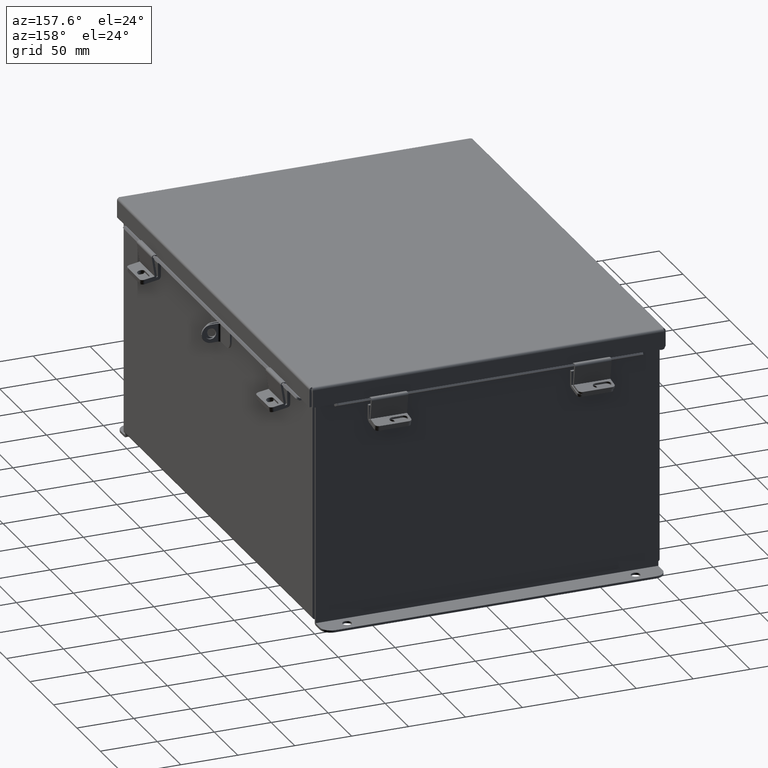
[diagram: clean part render]
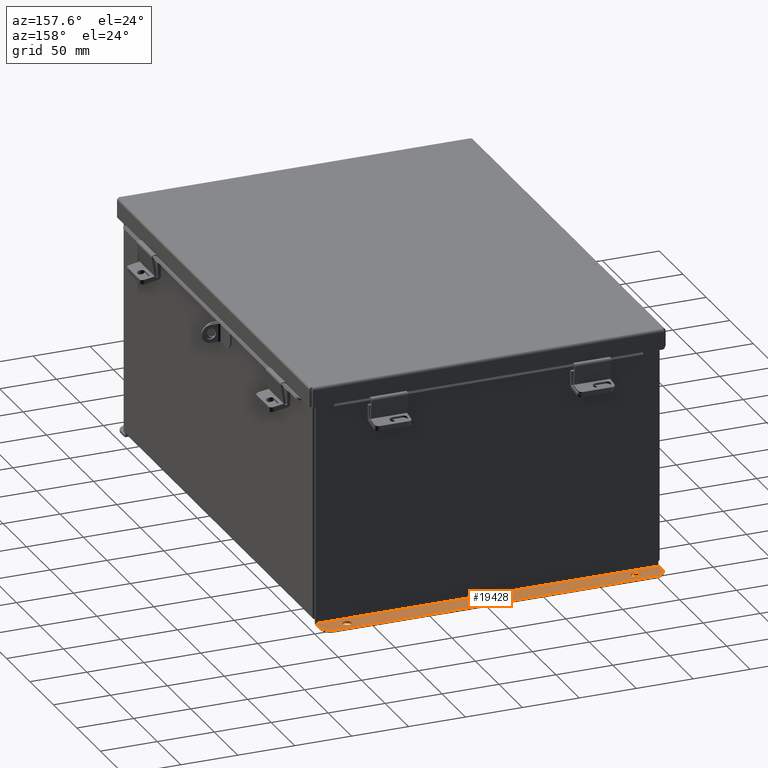
[diagram: same view with one face highlighted and labeled with its STEP entity id]
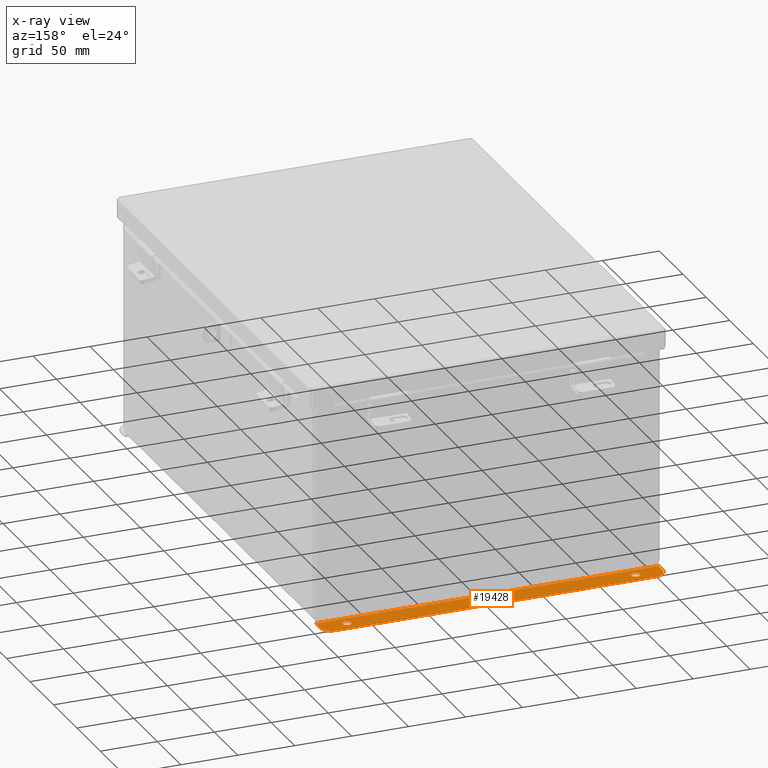
[diagram: x-ray of the same camera — body ghosted, the highlighted face saturated]
A machine part, auxiliary view. The second image highlights one B-rep face of the part: STEP entity #19428.
The next image is the same camera in x-ray: the body ghosted, the highlighted face saturated — about 0% of this face is hidden behind the body in this view.
In plain terms, the highlighted planar face has unit normal (0, 0, 1).
Its self-contained STEP definition (entity closure, byte-faithful):
#26 = CARTESIAN_POINT ( 'NONE',  ( 0.0000000000000000000, -1.420560956705417000E-014, -4.112300000000001200 ) ) ;
#356 = VERTEX_POINT ( 'NONE', #1703 ) ;
#475 = EDGE_CURVE ( 'NONE', #3925, #11516, #8296, .T. ) ;
#543 = VECTOR ( 'NONE', #10412, 39.37007874015748100 ) ;
#813 = ORIENTED_EDGE ( 'NONE', *, *, #19661, .F. ) ;
#1147 = CARTESIAN_POINT ( 'NONE',  ( 5.550299999999999100, 0.3627999999999997300, -4.112300000000002100 ) ) ;
#1169 = CARTESIAN_POINT ( 'NONE',  ( 5.925299999999999100, 0.7378000000000000100, -4.112300000000003800 ) ) ;
#1264 = DIRECTION ( 'NONE',  ( 0.0000000000000000000, -1.000000000000000000, 3.502369222646487400E-015 ) ) ;
#1540 = EDGE_CURVE ( 'NONE', #6808, #11516, #19708, .T. ) ;
#1653 = CARTESIAN_POINT ( 'NONE',  ( 5.925299999999999100, 0.01300000000000010700, -4.112300000000001200 ) ) ;
#1662 = CIRCLE ( 'NONE', #18307, 0.3750000000000000600 ) ;
#1703 = CARTESIAN_POINT ( 'NONE',  ( 5.925299999999999100, 0.01300000000000010700, -4.112300000000001200 ) ) ;
#1912 = DIRECTION ( 'NONE',  ( 1.000000000000000000, -0.0000000000000000000, -0.0000000000000000000 ) ) ;
#1926 = CARTESIAN_POINT ( 'NONE',  ( -5.925300000000000000, 0.01299999999999901400, -4.112300000000001200 ) ) ;
#1932 = CIRCLE ( 'NONE', #12607, 0.1560000000000001700 ) ;
#2158 = DIRECTION ( 'NONE',  ( -0.0000000000000000000, -1.000000000000000000, 3.702694488566362300E-015 ) ) ;
#2270 = CIRCLE ( 'NONE', #9421, 0.1560000000000001700 ) ;
#2324 = EDGE_LOOP ( 'NONE', ( #16344, #19993 ) ) ;
#2536 = CARTESIAN_POINT ( 'NONE',  ( -5.925300000000001800, 0.7378000000000000100, -4.112300000000003800 ) ) ;
#2718 = DIRECTION ( 'NONE',  ( 0.0000000000000000000, -1.000000000000000000, 4.370956789862820400E-015 ) ) ;
#3546 = CARTESIAN_POINT ( 'NONE',  ( 4.987799999999998200, 0.2067999999999996000, -4.112300000000001200 ) ) ;
#3844 = ORIENTED_EDGE ( 'NONE', *, *, #8416, .T. ) ;
#3925 = VERTEX_POINT ( 'NONE', #1926 ) ;
#3939 = CARTESIAN_POINT ( 'NONE',  ( -4.987800000000000900, 0.3627999999999997300, -4.112300000000002100 ) ) ;
#4238 = ORIENTED_EDGE ( 'NONE', *, *, #6784, .T. ) ;
#4240 = EDGE_CURVE ( 'NONE', #6808, #18168, #17976, .T. ) ;
#4535 = CARTESIAN_POINT ( 'NONE',  ( -5.550299999999999100, 0.7378000000000000100, -4.112300000000003800 ) ) ;
#4699 = VERTEX_POINT ( 'NONE', #10602 ) ;
#4708 = DIRECTION ( 'NONE',  ( 0.0000000000000000000, 3.702694488566362300E-015, 1.000000000000000000 ) ) ;
#4770 = EDGE_CURVE ( 'NONE', #6678, #16907, #1932, .T. ) ;
#4881 = FACE_BOUND ( 'NONE', #12771, .T. ) ;
#5564 = VECTOR ( 'NONE', #1912, 39.37007874015748100 ) ;
#5707 = DIRECTION ( 'NONE',  ( 0.0000000000000000000, 3.702694488566362300E-015, 1.000000000000000000 ) ) ;
#6038 = DIRECTION ( 'NONE',  ( -0.0000000000000000000, -3.702694488566362300E-015, -1.000000000000000000 ) ) ;
#6678 = VERTEX_POINT ( 'NONE', #3546 ) ;
#6784 = EDGE_CURVE ( 'NONE', #4699, #17922, #9803, .T. ) ;
#6799 = CARTESIAN_POINT ( 'NONE',  ( 5.925299999999999100, 0.0000000000000000000, -4.112300000000001200 ) ) ;
#6808 = VERTEX_POINT ( 'NONE', #4535 ) ;
#6871 = EDGE_LOOP ( 'NONE', ( #813, #18701, #16038, #14984, #19598, #6882 ) ) ;
#6882 = ORIENTED_EDGE ( 'NONE', *, *, #17210, .F. ) ;
#7097 = AXIS2_PLACEMENT_3D ( 'NONE', #12546, #5707, #10498 ) ;
#7544 = CARTESIAN_POINT ( 'NONE',  ( 4.987799999999998200, 0.3627999999999997300, -4.112300000000002100 ) ) ;
#7651 = DIRECTION ( 'NONE',  ( -0.0000000000000000000, -3.702694488566362300E-015, -1.000000000000000000 ) ) ;
#8296 = LINE ( 'NONE', #2536, #543 ) ;
#8416 = EDGE_CURVE ( 'NONE', #17922, #4699, #20004, .T. ) ;
#8539 = FACE_BOUND ( 'NONE', #2324, .T. ) ;
#9032 = CARTESIAN_POINT ( 'NONE',  ( 5.550299999999999100, 0.7378000000000000100, -4.112300000000003800 ) ) ;
#9421 = AXIS2_PLACEMENT_3D ( 'NONE', #19859, #10518, #1264 ) ;
#9581 = VERTEX_POINT ( 'NONE', #18791 ) ;
#9803 = CIRCLE ( 'NONE', #10387, 0.1560000000000001700 ) ;
#10244 = CARTESIAN_POINT ( 'NONE',  ( 4.987799999999998200, 0.5187999999999999300, -4.112300000000002100 ) ) ;
#10387 = AXIS2_PLACEMENT_3D ( 'NONE', #3939, #7651, #15173 ) ;
#10412 = DIRECTION ( 'NONE',  ( -0.0000000000000000000, 1.000000000000000000, -3.702694488566362300E-015 ) ) ;
#10498 = DIRECTION ( 'NONE',  ( 0.0000000000000000000, -1.000000000000000000, 4.370956789862820400E-015 ) ) ;
#10518 = DIRECTION ( 'NONE',  ( -0.0000000000000000000, -3.702694488566362300E-015, -1.000000000000000000 ) ) ;
#10602 = CARTESIAN_POINT ( 'NONE',  ( -4.987800000000000900, 0.2067999999999996000, -4.112300000000001200 ) ) ;
#11470 = EDGE_CURVE ( 'NONE', #9581, #18168, #1662, .T. ) ;
#11516 = VERTEX_POINT ( 'NONE', #16743 ) ;
#11967 = DIRECTION ( 'NONE',  ( 0.0000000000000000000, 3.702694488566362300E-015, 1.000000000000000000 ) ) ;
#12028 = LINE ( 'NONE', #1653, #15685 ) ;
#12546 = CARTESIAN_POINT ( 'NONE',  ( -5.550299999999999100, 0.3628000000000008400, -4.112300000000002100 ) ) ;
#12607 = AXIS2_PLACEMENT_3D ( 'NONE', #7544, #15468, #18434 ) ;
#12771 = EDGE_LOOP ( 'NONE', ( #3844, #4238 ) ) ;
#12914 = LINE ( 'NONE', #6799, #13426 ) ;
#13426 = VECTOR ( 'NONE', #2158, 39.37007874015748100 ) ;
#14053 = PLANE ( 'NONE',  #17448 ) ;
#14350 = EDGE_CURVE ( 'NONE', #16907, #6678, #2270, .T. ) ;
#14984 = ORIENTED_EDGE ( 'NONE', *, *, #1540, .T. ) ;
#15173 = DIRECTION ( 'NONE',  ( 0.0000000000000000000, -1.000000000000000000, 3.502369222646487400E-015 ) ) ;
#15373 = CARTESIAN_POINT ( 'NONE',  ( -4.987800000000000900, 0.3627999999999997300, -4.112300000000002100 ) ) ;
#15468 = DIRECTION ( 'NONE',  ( -0.0000000000000000000, -3.702694488566362300E-015, -1.000000000000000000 ) ) ;
#15601 = DIRECTION ( 'NONE',  ( 0.0000000000000000000, -1.000000000000000000, 3.702694488566362300E-015 ) ) ;
#15685 = VECTOR ( 'NONE', #17027, 39.37007874015748100 ) ;
#16038 = ORIENTED_EDGE ( 'NONE', *, *, #4240, .F. ) ;
#16344 = ORIENTED_EDGE ( 'NONE', *, *, #14350, .T. ) ;
#16743 = CARTESIAN_POINT ( 'NONE',  ( -5.925300000000001800, 0.3628000000000008400, -4.112300000000002100 ) ) ;
#16809 = FACE_OUTER_BOUND ( 'NONE', #6871, .T. ) ;
#16901 = DIRECTION ( 'NONE',  ( 0.0000000000000000000, -1.000000000000000000, 3.502369222646487400E-015 ) ) ;
#16907 = VERTEX_POINT ( 'NONE', #10244 ) ;
#17027 = DIRECTION ( 'NONE',  ( -1.000000000000000000, -4.610480471308228800E-017, 1.707120063075582100E-031 ) ) ;
#17210 = EDGE_CURVE ( 'NONE', #356, #3925, #12028, .T. ) ;
#17448 = AXIS2_PLACEMENT_3D ( 'NONE', #26, #4708, #15601 ) ;
#17818 = CARTESIAN_POINT ( 'NONE',  ( -4.987800000000000900, 0.5187999999999999300, -4.112300000000002100 ) ) ;
#17922 = VERTEX_POINT ( 'NONE', #17818 ) ;
#17976 = LINE ( 'NONE', #1169, #5564 ) ;
#18168 = VERTEX_POINT ( 'NONE', #9032 ) ;
#18307 = AXIS2_PLACEMENT_3D ( 'NONE', #1147, #11967, #2718 ) ;
#18434 = DIRECTION ( 'NONE',  ( 0.0000000000000000000, -1.000000000000000000, 3.502369222646487400E-015 ) ) ;
#18701 = ORIENTED_EDGE ( 'NONE', *, *, #11470, .T. ) ;
#18791 = CARTESIAN_POINT ( 'NONE',  ( 5.925299999999999100, 0.3627999999999997300, -4.112300000000002100 ) ) ;
#19428 = ADVANCED_FACE ( 'NONE', ( #4881, #8539, #16809 ), #14053, .T. ) ;
#19598 = ORIENTED_EDGE ( 'NONE', *, *, #475, .F. ) ;
#19661 = EDGE_CURVE ( 'NONE', #9581, #356, #12914, .T. ) ;
#19708 = CIRCLE ( 'NONE', #7097, 0.3750000000000000600 ) ;
#19859 = CARTESIAN_POINT ( 'NONE',  ( 4.987799999999998200, 0.3627999999999997300, -4.112300000000002100 ) ) ;
#19934 = AXIS2_PLACEMENT_3D ( 'NONE', #15373, #6038, #16901 ) ;
#19993 = ORIENTED_EDGE ( 'NONE', *, *, #4770, .T. ) ;
#20004 = CIRCLE ( 'NONE', #19934, 0.1560000000000001700 ) ;